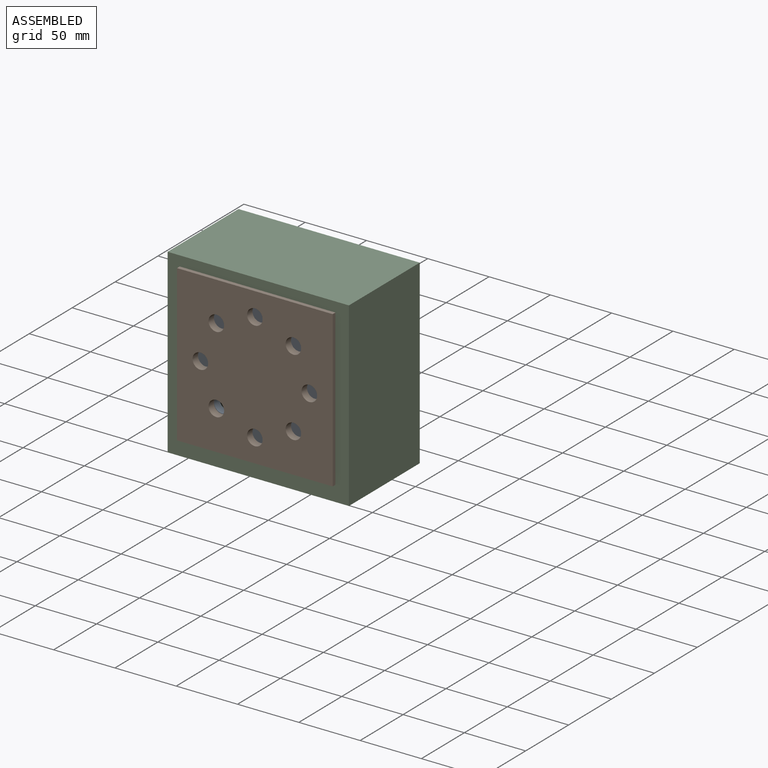
[diagram: assembled view]
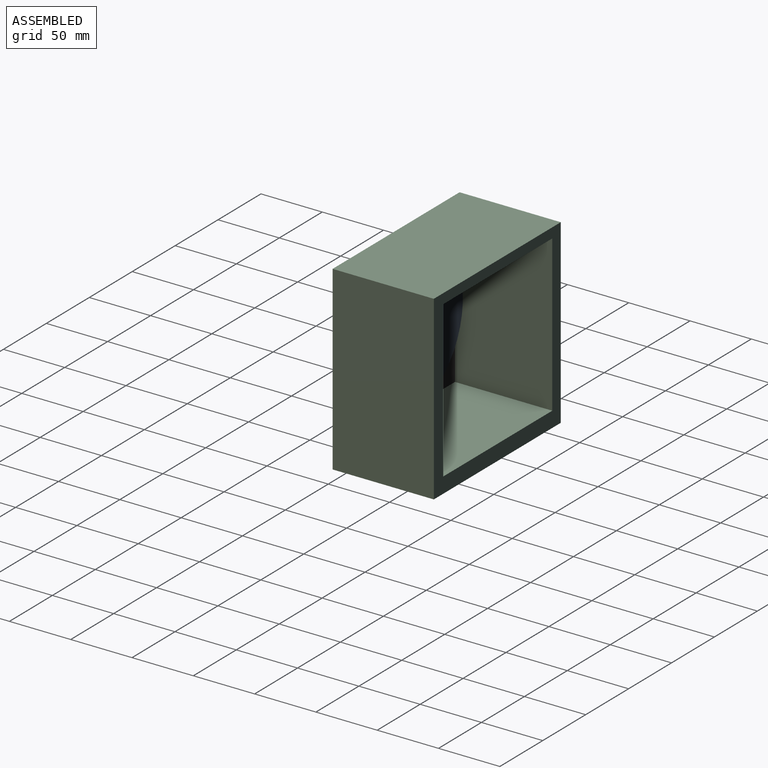
[diagram: assembled view, second angle]
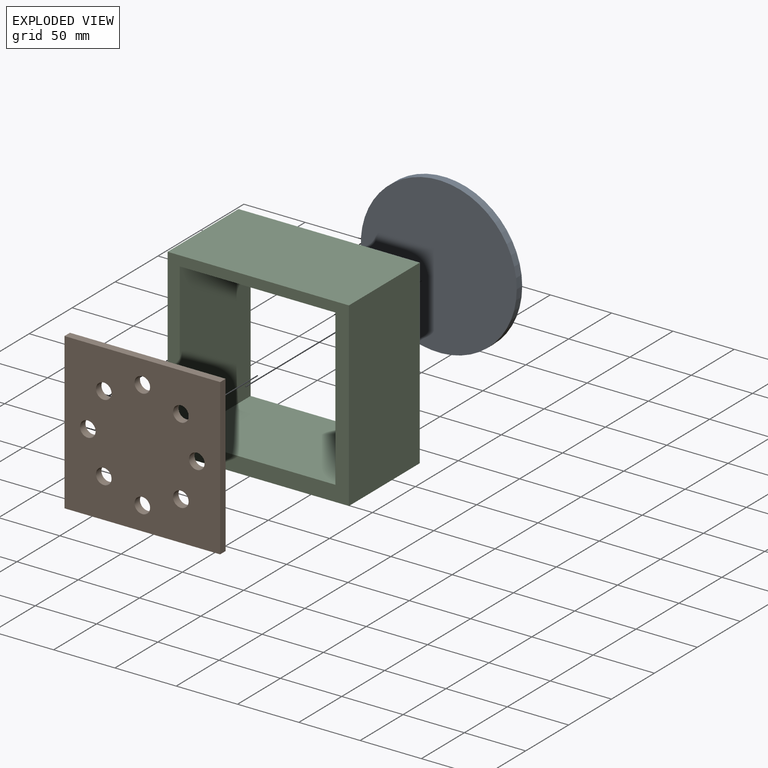
[diagram: exploded view]
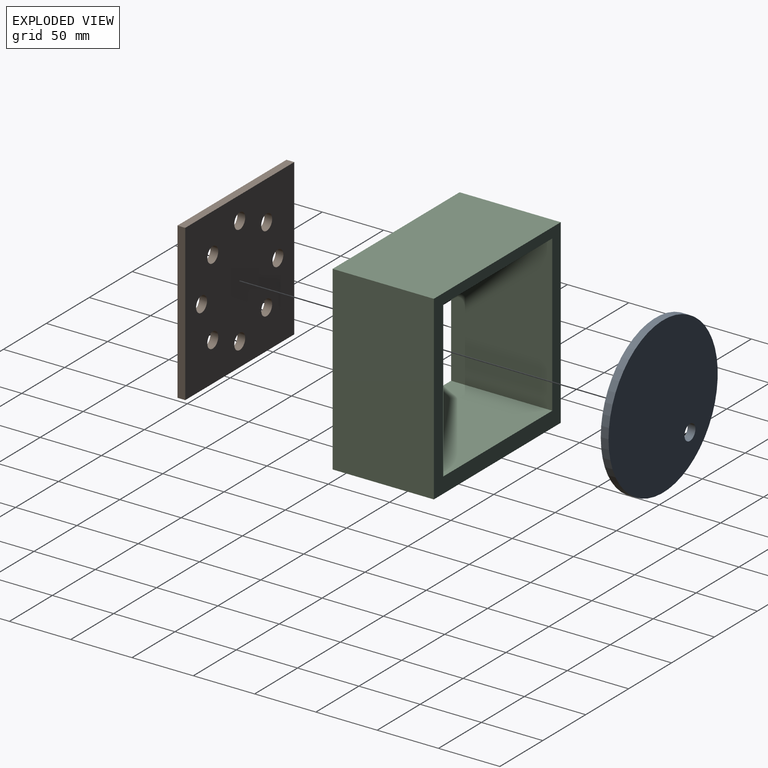
[diagram: exploded view, second angle]
ASSEMBLY  parts=3 mates=2
PART A: 4 faces, bbox 127.2x6.4x127.2 mm
  f0: cylinder r=6.35mm len=12.7mm, axis (0,-1,0), area 253.4mm2, adj f2,f3
  f1: cylinder r=63.6mm len=127.2mm, axis (0,-1,0), area 2537.5mm2, adj f2,f3
  f2: plane 127.2x127.2mm, normal (0,1,0), area 12581.1mm2, adj f0,f1
  f3: plane 127.2x127.2mm, normal (0,-1,0), area 12581.1mm2, adj f0,f1
PART B: 14 faces, bbox 127x6.4x127 mm
  f0: plane 127x6.35mm, normal (-1,0,0), area 806.5mm2, adj f1,f11,f12,f13
  f1: plane 127x6.35mm, normal (0,0,-1), area 806.5mm2, adj f0,f2,f12,f13
  f2: plane 127x6.35mm, normal (1,0,0), area 806.5mm2, adj f1,f11,f12,f13
  f3: cylinder r=6.35mm len=12.7mm, axis (0,1,0), area 253.4mm2, adj f12,f13
  f4: cylinder r=6.35mm len=12.7mm, axis (0,1,0), area 253.4mm2, adj f12,f13
  f5: cylinder r=6.35mm len=12.7mm, axis (0,1,0), area 253.4mm2, adj f12,f13
  f6: cylinder r=6.35mm len=12.7mm, axis (0,1,0), area 253.4mm2, adj f12,f13
  f7: cylinder r=6.35mm len=12.7mm, axis (0,1,0), area 253.4mm2, adj f12,f13
  f8: cylinder r=6.35mm len=12.7mm, axis (0,1,0), area 253.4mm2, adj f12,f13
  f9: cylinder r=6.35mm len=12.7mm, axis (0,1,0), area 253.4mm2, adj f12,f13
  f10: cylinder r=6.35mm len=12.7mm, axis (0,1,0), area 253.4mm2, adj f12,f13
  f11: plane 127x6.35mm, normal (0,0,1), area 806.5mm2, adj f0,f2,f12,f13
  f12: plane 127x127mm, normal (0,-1,0), area 15115.6mm2, adj f0,f1,f2,f3,f4,f5,f6,f7
  f13: plane 127x127mm, normal (0,1,0), area 15115.6mm2, adj f0,f1,f2,f3,f4,f5,f6,f7
PART C: 10 faces, bbox 147.9x82.6x147.9 mm
  f0: plane 147.88x82.55mm, normal (-1,0,0), area 12207.9mm2, adj f1,f7,f8,f9
  f1: plane 147.88x82.55mm, normal (0,0,-1), area 12207.9mm2, adj f0,f2,f8,f9
  f2: plane 147.88x82.55mm, normal (1,0,0), area 12207.9mm2, adj f1,f7,f8,f9
  f3: plane 127x82.55mm, normal (0,0,1), area 10483.8mm2, adj f4,f6,f8,f9
  f4: plane 127x82.55mm, normal (1,0,0), area 10483.8mm2, adj f3,f5,f8,f9
  f5: plane 127x82.55mm, normal (0,0,-1), area 10483.8mm2, adj f4,f6,f8,f9
  f6: plane 127x82.55mm, normal (-1,0,0), area 10483.8mm2, adj f3,f5,f8,f9
  f7: plane 147.88x82.55mm, normal (0,0,1), area 12207.9mm2, adj f0,f2,f8,f9
  f8: plane 147.88x147.88mm, normal (0,1,0), area 5740.8mm2, adj f0,f1,f2,f3,f4,f5,f6,f7
  f9: plane 147.88x147.88mm, normal (0,-1,0), area 5740.8mm2, adj f0,f1,f2,f3,f4,f5,f6,f7
PLACE A t=(60.93,-59.8,-70.74)mm
PLACE B t=(60.93,-53.45,-70.74)mm
PLACE C t=(60.93,-50.27,-70.74)mm
MATE revolute A.f1 <-> B.f13  axis (0,-1,0) through (60.93,-53.45,-70.74)mm
MATE fastened B.f2 <-> C.f6  axis (1,0,0) through (124.43,-56.62,-70.74)mm
